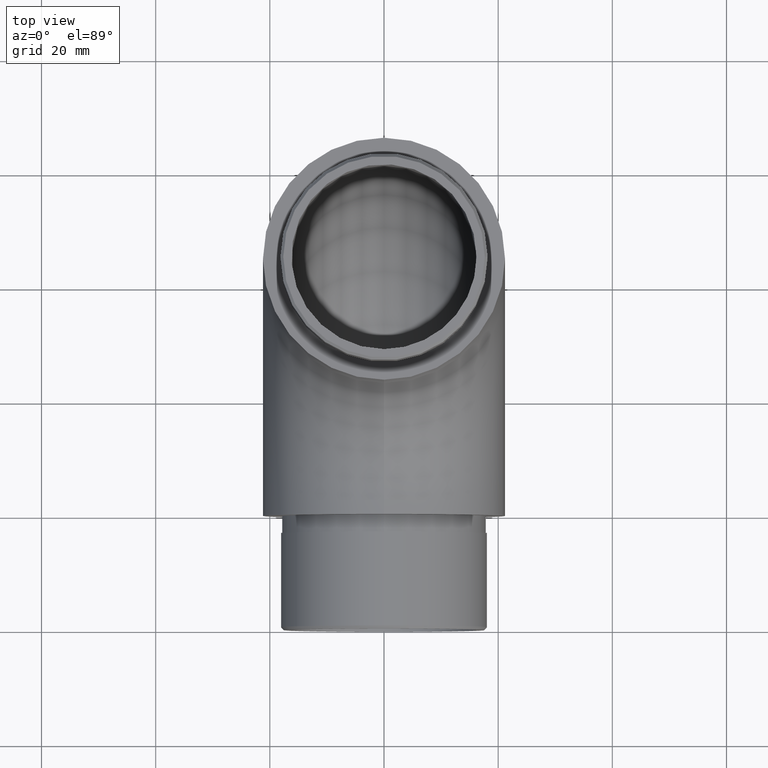
[diagram: clean part render]
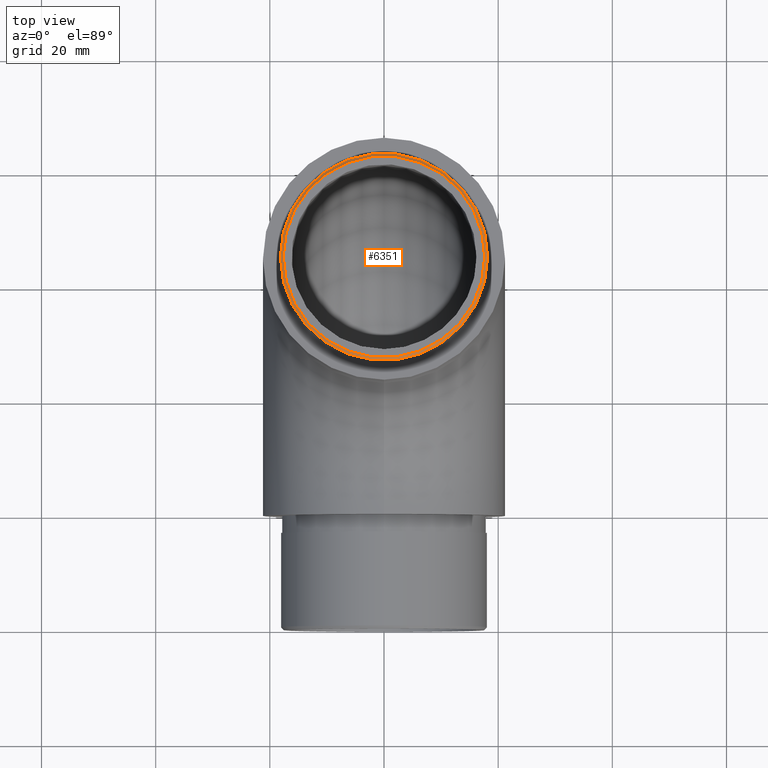
[diagram: same view with one face highlighted and labeled with its STEP entity id]
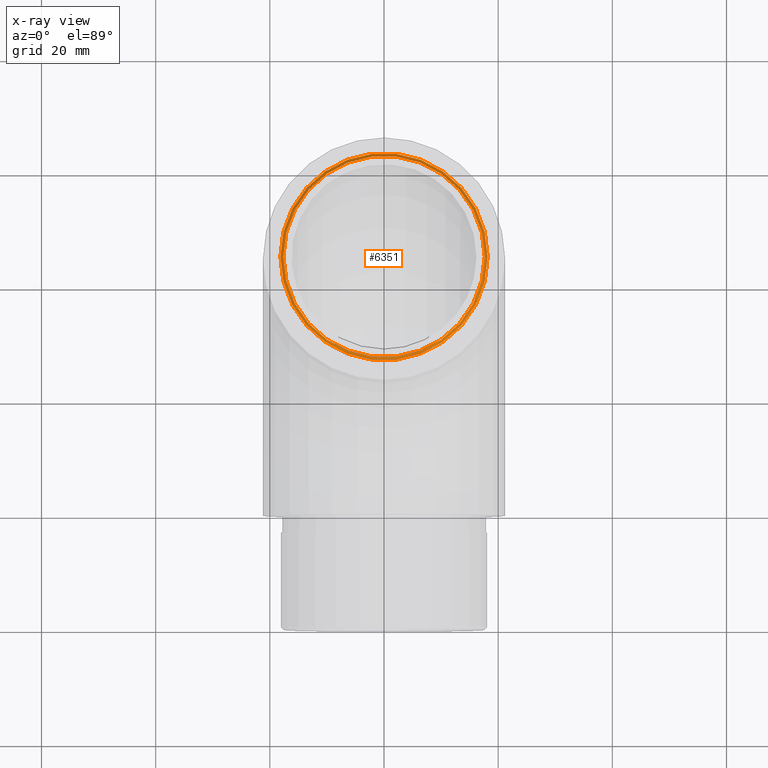
[diagram: x-ray of the same camera — body ghosted, the highlighted face saturated]
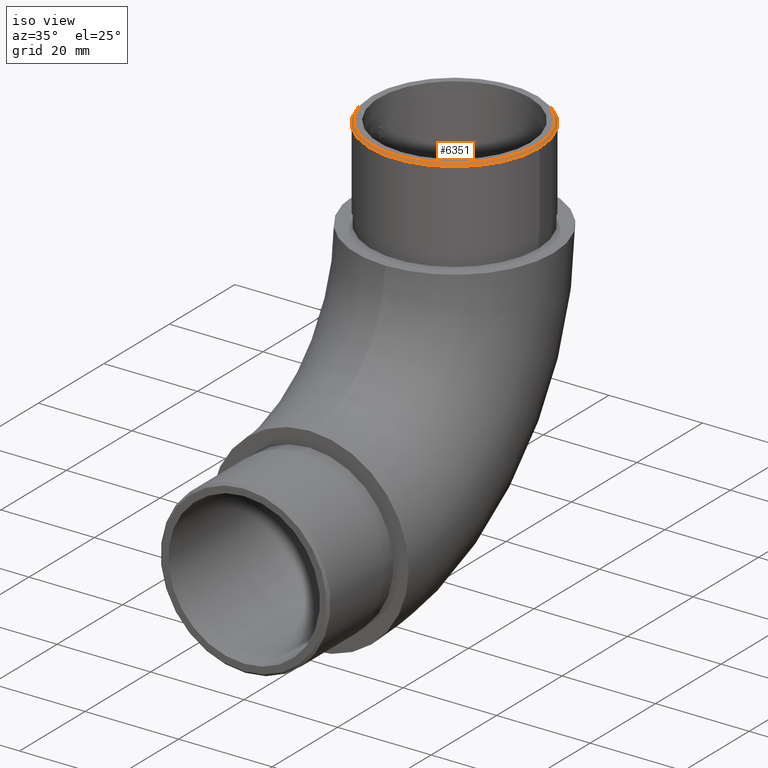
[diagram: same view with one face highlighted and labeled with its STEP entity id]
A machine part, top view. The second image highlights one B-rep face of the part: STEP entity #6351.
The next image is the same camera in x-ray: the body ghosted, the highlighted face saturated — about 0% of this face is hidden behind the body in this view.
A second angle (iso view) of the same face is appended — the face is thin or edge-on in the first view.
In plain terms, the highlighted conical surface has half-angle 45 deg.
Its self-contained STEP definition (entity closure, byte-faithful):
#395 = AXIS2_PLACEMENT_3D ( 'NONE', #3831, #4897, #10637 ) ;
#498 = CARTESIAN_POINT ( 'NONE',  ( 17.65000000000001300, 44.29999999999999000, 85.50000000000000000 ) ) ;
#698 = CONICAL_SURFACE ( 'NONE', #395, 17.65000000000001300, 0.7853981633974482800 ) ;
#817 = CIRCLE ( 'NONE', #1446, 17.65000000000001300 ) ;
#1226 = DIRECTION ( 'NONE',  ( 1.000000000000000000, 0.0000000000000000000, 0.0000000000000000000 ) ) ;
#1446 = AXIS2_PLACEMENT_3D ( 'NONE', #7876, #1738, #7923 ) ;
#1738 = DIRECTION ( 'NONE',  ( 0.0000000000000000000, 0.0000000000000000000, 1.000000000000000000 ) ) ;
#3437 = FACE_BOUND ( 'NONE', #10141, .T. ) ;
#3673 = CIRCLE ( 'NONE', #9199, 18.14999999999999900 ) ;
#3831 = CARTESIAN_POINT ( 'NONE',  ( 0.0000000000000000000, 44.29999999999999000, 85.50000000000000000 ) ) ;
#3912 = EDGE_LOOP ( 'NONE', ( #11419 ) ) ;
#4096 = CARTESIAN_POINT ( 'NONE',  ( 0.0000000000000000000, 44.29999999999999000, 85.00000000000001400 ) ) ;
#4403 = FACE_OUTER_BOUND ( 'NONE', #3912, .T. ) ;
#4639 = EDGE_CURVE ( 'NONE', #12490, #12490, #3673, .T. ) ;
#4661 = VERTEX_POINT ( 'NONE', #498 ) ;
#4668 = CARTESIAN_POINT ( 'NONE',  ( 18.14999999999999900, 44.29999999999999000, 85.00000000000001400 ) ) ;
#4897 = DIRECTION ( 'NONE',  ( 0.0000000000000000000, 0.0000000000000000000, -1.000000000000000000 ) ) ;
#6351 = ADVANCED_FACE ( 'NONE', ( #4403, #3437 ), #698, .T. ) ;
#7876 = CARTESIAN_POINT ( 'NONE',  ( 0.0000000000000000000, 44.29999999999999000, 85.50000000000000000 ) ) ;
#7923 = DIRECTION ( 'NONE',  ( 1.000000000000000000, 0.0000000000000000000, 0.0000000000000000000 ) ) ;
#9177 = ORIENTED_EDGE ( 'NONE', *, *, #11685, .F. ) ;
#9199 = AXIS2_PLACEMENT_3D ( 'NONE', #4096, #10335, #1226 ) ;
#10141 = EDGE_LOOP ( 'NONE', ( #9177 ) ) ;
#10335 = DIRECTION ( 'NONE',  ( 0.0000000000000000000, 0.0000000000000000000, -1.000000000000000000 ) ) ;
#10637 = DIRECTION ( 'NONE',  ( -1.000000000000000000, 0.0000000000000000000, 0.0000000000000000000 ) ) ;
#11419 = ORIENTED_EDGE ( 'NONE', *, *, #4639, .F. ) ;
#11685 = EDGE_CURVE ( 'NONE', #4661, #4661, #817, .T. ) ;
#12490 = VERTEX_POINT ( 'NONE', #4668 ) ;